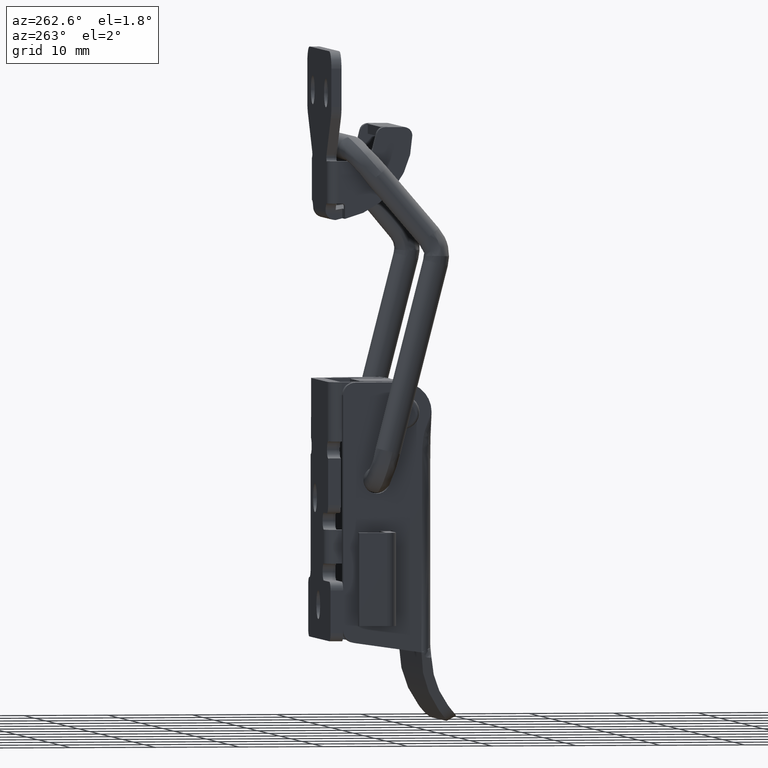
[diagram: clean part render]
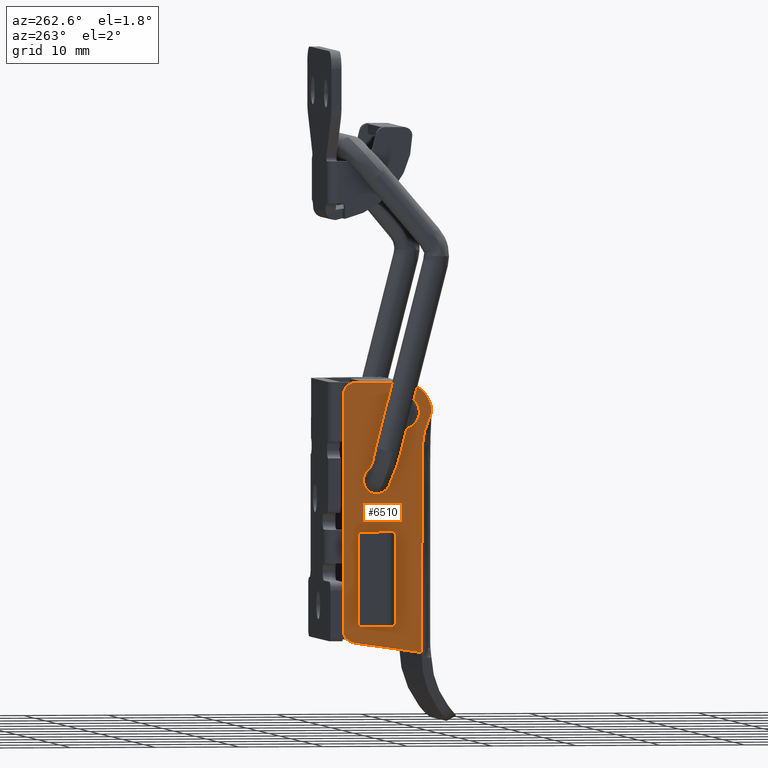
[diagram: same view with one face highlighted and labeled with its STEP entity id]
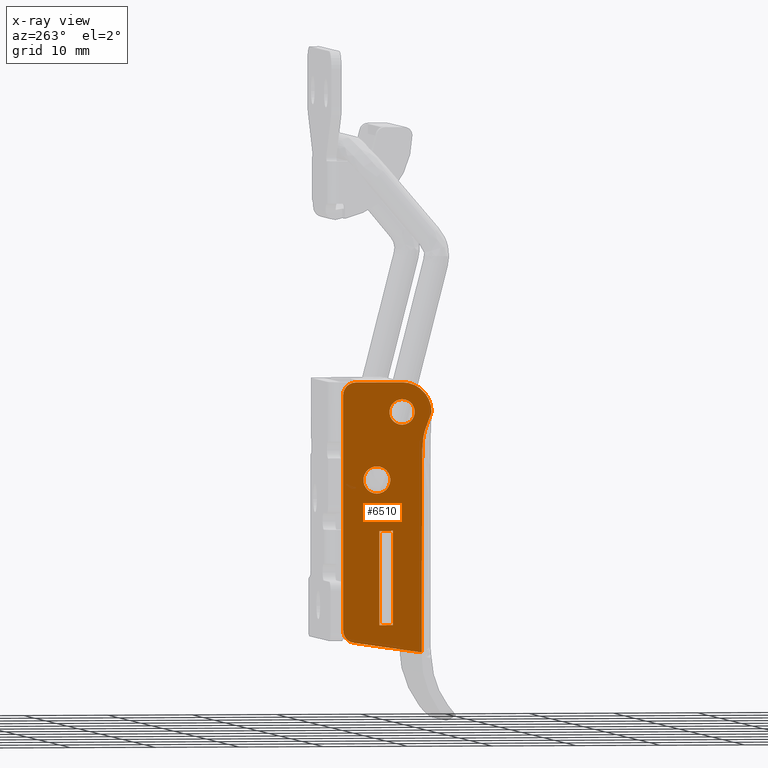
[diagram: x-ray of the same camera — body ghosted, the highlighted face saturated]
A machine part, auxiliary view. The second image highlights one B-rep face of the part: STEP entity #6510.
The next image is the same camera in x-ray: the body ghosted, the highlighted face saturated — about 0% of this face is hidden behind the body in this view.
In plain terms, the highlighted planar face has unit normal (-1, 0, 0).
Its self-contained STEP definition (entity closure, byte-faithful):
#49 = CARTESIAN_POINT ( 'NONE',  ( -8.100013999976139800, 10.20000000000020000, -59.32860040997160000 ) ) ;
#83 = B_SPLINE_CURVE_WITH_KNOTS ( 'NONE', 3,
 ( #49, #143, #142, #141, #140, #139, #138, #137, #136, #135 ),
 .UNSPECIFIED., .F., .F.,
 ( 4, 3, 3, 4 ),
 ( 0.6686716794155345100, 0.9259259259259260400, 0.9629629629629630200, 1.000000000000000000 ),
 .UNSPECIFIED. ) ;
#84 = CARTESIAN_POINT ( 'NONE',  ( -9.300013999997629500, 10.20000000000020000, -31.00002899999990200 ) ) ;
#135 = CARTESIAN_POINT ( 'NONE',  ( -9.300013999997629500, 10.20000000000020000, -31.00002899999990200 ) ) ;
#136 = CARTESIAN_POINT ( 'NONE',  ( -8.966680666664299100, 10.20000000000020000, -32.05558455555544800 ) ) ;
#137 = CARTESIAN_POINT ( 'NONE',  ( -8.400013999997629100, 10.20000000000020000, -33.11114011111099800 ) ) ;
#138 = CARTESIAN_POINT ( 'NONE',  ( -8.300013999997629500, 10.20000000000020000, -34.16669566666654800 ) ) ;
#139 = CARTESIAN_POINT ( 'NONE',  ( -8.200013999997628000, 10.20000000000020000, -35.22225122222209800 ) ) ;
#140 = CARTESIAN_POINT ( 'NONE',  ( -8.100013999997630200, 10.20000000000020000, -36.27780677777764900 ) ) ;
#141 = CARTESIAN_POINT ( 'NONE',  ( -8.100013999997630200, 10.20000000000020000, -37.33336233333319900 ) ) ;
#142 = CARTESIAN_POINT ( 'NONE',  ( -8.100013999997630200, 10.20000000000020000, -44.66510835887933000 ) ) ;
#143 = CARTESIAN_POINT ( 'NONE',  ( -8.100013999997630200, 10.20000000000020000, -51.99685438442546800 ) ) ;
#2033 = CIRCLE ( 'NONE', #2099, 1.500000000000001300 ) ;
#2034 = CARTESIAN_POINT ( 'NONE',  ( 1.199986000002370100, 10.20000000000020000, -56.69908499999989700 ) ) ;
#2035 = DIRECTION ( 'NONE',  ( 0.0000000000000000000, 0.0000000000000000000, 1.000000000000000000 ) ) ;
#2036 = VECTOR ( 'NONE', #2035, 1000.000000000000000 ) ;
#2037 = CARTESIAN_POINT ( 'NONE',  ( 1.199986000002370100, 10.20000000000020000, 0.0000000000000000000 ) ) ;
#2038 = LINE ( 'NONE', #2037, #2036 ) ;
#2039 = CARTESIAN_POINT ( 'NONE',  ( 1.199986000002370100, 10.20000000000020000, -29.00002899999989800 ) ) ;
#2040 = DIRECTION ( 'NONE',  ( 0.0000000000000000000, 0.0000000000000000000, 1.000000000000000000 ) ) ;
#2041 = DIRECTION ( 'NONE',  ( 0.0000000000000000000, -1.000000000000000000, 0.0000000000000000000 ) ) ;
#2042 = CARTESIAN_POINT ( 'NONE',  ( -0.3000139999976310100, 10.20000000000020000, -29.00002899999989800 ) ) ;
#2043 = AXIS2_PLACEMENT_3D ( 'NONE', #2042, #2041, #2040 ) ;
#2044 = CIRCLE ( 'NONE', #2043, 1.500000000000001300 ) ;
#2045 = CARTESIAN_POINT ( 'NONE',  ( -0.3000139999976310100, 10.20000000000020000, -27.50002899999990200 ) ) ;
#2046 = DIRECTION ( 'NONE',  ( -1.000000000000000000, 0.0000000000000000000, 0.0000000000000000000 ) ) ;
#2047 = VECTOR ( 'NONE', #2046, 1000.000000000000000 ) ;
#2048 = CARTESIAN_POINT ( 'NONE',  ( 0.0000000000000000000, 10.20000000000020000, -27.50002899999980200 ) ) ;
#2049 = LINE ( 'NONE', #2048, #2047 ) ;
#2077 = DIRECTION ( 'NONE',  ( 0.0000000000000000000, 0.0000000000000000000, 1.000000000000000000 ) ) ;
#2078 = DIRECTION ( 'NONE',  ( 0.0000000000000000000, -1.000000000000000000, 0.0000000000000000000 ) ) ;
#2079 = CARTESIAN_POINT ( 'NONE',  ( -5.800013999997619700, 10.20000000000020000, -31.00002899999990200 ) ) ;
#2080 = AXIS2_PLACEMENT_3D ( 'NONE', #2079, #2078, #2077 ) ;
#2081 = CIRCLE ( 'NONE', #2080, 1.500000000000001300 ) ;
#2082 = DIRECTION ( 'NONE',  ( 1.000000000000000000, 0.0000000000000000000, 0.0000000000000000000 ) ) ;
#2083 = DIRECTION ( 'NONE',  ( 0.0000000000000000000, 1.000000000000000000, 0.0000000000000000000 ) ) ;
#2084 = CARTESIAN_POINT ( 'NONE',  ( 0.0000000000000000000, 10.20000000000020000, 0.0000000000000000000 ) ) ;
#2085 = AXIS2_PLACEMENT_3D ( 'NONE', #2084, #2083, #2082 ) ;
#2086 = PLANE ( 'NONE',  #2085 ) ;
#2087 = FACE_BOUND ( 'NONE', #6574, .T. ) ;
#2088 = FACE_BOUND ( 'NONE', #6504, .T. ) ;
#2089 = FACE_OUTER_BOUND ( 'NONE', #6515, .T. ) ;
#2090 = FACE_BOUND ( 'NONE', #6511, .T. ) ;
#2096 = DIRECTION ( 'NONE',  ( -1.770863548392989100E-015, 0.0000000000000000000, 1.000000000000000000 ) ) ;
#2097 = DIRECTION ( 'NONE',  ( 0.0000000000000000000, -1.000000000000000000, 0.0000000000000000000 ) ) ;
#2098 = CARTESIAN_POINT ( 'NONE',  ( -0.3000139999976310100, 10.20000000000020000, -56.69908499999989700 ) ) ;
#2099 = AXIS2_PLACEMENT_3D ( 'NONE', #2098, #2097, #2096 ) ;
#2104 = DIRECTION ( 'NONE',  ( 0.0000000000000000000, 0.0000000000000000000, 1.000000000000000000 ) ) ;
#2105 = DIRECTION ( 'NONE',  ( 0.0000000000000000000, -1.000000000000000000, 0.0000000000000000000 ) ) ;
#2106 = CARTESIAN_POINT ( 'NONE',  ( -2.800013999999804600, 10.19999999999987800, -39.00003249999989700 ) ) ;
#2107 = AXIS2_PLACEMENT_3D ( 'NONE', #2106, #2105, #2104 ) ;
#2108 = CIRCLE ( 'NONE', #2107, 1.599999999999997200 ) ;
#2132 = CARTESIAN_POINT ( 'NONE',  ( -4.700013999997549900, 10.20000000000020000, -45.00002899999980600 ) ) ;
#2133 = DIRECTION ( 'NONE',  ( -1.000000000000000000, 0.0000000000000000000, 0.0000000000000000000 ) ) ;
#2134 = VECTOR ( 'NONE', #2133, 1000.000000000000000 ) ;
#2135 = CARTESIAN_POINT ( 'NONE',  ( 0.0000000000000000000, 10.20000000000020000, -45.00002899999980600 ) ) ;
#2136 = LINE ( 'NONE', #2135, #2134 ) ;
#2137 = CARTESIAN_POINT ( 'NONE',  ( -3.100013999997644800, 10.20000000000020000, -45.00002899999980600 ) ) ;
#2138 = CARTESIAN_POINT ( 'NONE',  ( -3.100013999997644800, 10.20000000000020000, -56.10002899999980000 ) ) ;
#2139 = DIRECTION ( 'NONE',  ( 0.0000000000000000000, 0.0000000000000000000, 1.000000000000000000 ) ) ;
#2140 = VECTOR ( 'NONE', #2139, 1000.000000000000000 ) ;
#2141 = CARTESIAN_POINT ( 'NONE',  ( -3.100013999997644800, 10.20000000000020000, 0.0000000000000000000 ) ) ;
#2142 = LINE ( 'NONE', #2141, #2140 ) ;
#2181 = CARTESIAN_POINT ( 'NONE',  ( -5.800013999997630300, 10.20000000000020000, -27.50002899999980200 ) ) ;
#2182 = DIRECTION ( 'NONE',  ( 0.0000000000000000000, 0.0000000000000000000, 1.000000000000000000 ) ) ;
#2183 = DIRECTION ( 'NONE',  ( 0.0000000000000000000, -1.000000000000000000, 0.0000000000000000000 ) ) ;
#2184 = CARTESIAN_POINT ( 'NONE',  ( -5.800013999997630300, 10.20000000000020000, -31.00002899999990200 ) ) ;
#2185 = AXIS2_PLACEMENT_3D ( 'NONE', #2184, #2183, #2182 ) ;
#2186 = CIRCLE ( 'NONE', #2185, 3.499999999999999600 ) ;
#2187 = DIRECTION ( 'NONE',  ( 1.000000000000000000, 0.0000000000000000000, 0.0000000000000000000 ) ) ;
#2188 = VECTOR ( 'NONE', #2187, 1000.000000000000000 ) ;
#2189 = CARTESIAN_POINT ( 'NONE',  ( 0.0000000000000000000, 10.20000000000020000, -56.10002899999980000 ) ) ;
#2190 = LINE ( 'NONE', #2189, #2188 ) ;
#2191 = CARTESIAN_POINT ( 'NONE',  ( -4.700013999997549900, 10.20000000000020000, -56.10002899999980000 ) ) ;
#2192 = DIRECTION ( 'NONE',  ( 0.0000000000000000000, 0.0000000000000000000, -1.000000000000000000 ) ) ;
#2193 = VECTOR ( 'NONE', #2192, 1000.000000000000000 ) ;
#2194 = CARTESIAN_POINT ( 'NONE',  ( -4.700013999997549900, 10.20000000000020000, 0.0000000000000000000 ) ) ;
#2195 = LINE ( 'NONE', #2194, #2193 ) ;
#6158 = VERTEX_POINT ( 'NONE', #11909 ) ;
#6159 = VERTEX_POINT ( 'NONE', #11908 ) ;
#6205 = VERTEX_POINT ( 'NONE', #12709 ) ;
#6207 = EDGE_CURVE ( 'NONE', #6208, #6205, #13739, .T. ) ;
#6208 = VERTEX_POINT ( 'NONE', #13734 ) ;
#6234 = EDGE_CURVE ( 'NONE', #6158, #6159, #13740, .T. ) ;
#6255 = VERTEX_POINT ( 'NONE', #13828 ) ;
#6257 = EDGE_CURVE ( 'NONE', #6255, #6258, #13827, .T. ) ;
#6258 = VERTEX_POINT ( 'NONE', #13823 ) ;
#6348 = EDGE_CURVE ( 'NONE', #6255, #6349, #83, .T. ) ;
#6349 = VERTEX_POINT ( 'NONE', #84 ) ;
#6494 = EDGE_CURVE ( 'NONE', #6495, #6579, #2049, .T. ) ;
#6495 = VERTEX_POINT ( 'NONE', #2045 ) ;
#6496 = ORIENTED_EDGE ( 'NONE', *, *, #6497, .F. ) ;
#6497 = EDGE_CURVE ( 'NONE', #6498, #6495, #2044, .T. ) ;
#6498 = VERTEX_POINT ( 'NONE', #2039 ) ;
#6499 = ORIENTED_EDGE ( 'NONE', *, *, #6500, .F. ) ;
#6500 = EDGE_CURVE ( 'NONE', #6501, #6498, #2038, .T. ) ;
#6501 = VERTEX_POINT ( 'NONE', #2034 ) ;
#6502 = ORIENTED_EDGE ( 'NONE', *, *, #6503, .F. ) ;
#6503 = EDGE_CURVE ( 'NONE', #6258, #6501, #2033, .T. ) ;
#6504 = EDGE_LOOP ( 'NONE', ( #6562, #6566, #6569, #6572 ) ) ;
#6510 = ADVANCED_FACE ( 'NONE', ( #2090, #2089, #2088, #2087 ), #2086, .T. ) ;
#6511 = EDGE_LOOP ( 'NONE', ( #6512, #6514 ) ) ;
#6512 = ORIENTED_EDGE ( 'NONE', *, *, #6513, .T. ) ;
#6513 = EDGE_CURVE ( 'NONE', #6159, #6158, #2081, .T. ) ;
#6514 = ORIENTED_EDGE ( 'NONE', *, *, #6234, .T. ) ;
#6515 = EDGE_LOOP ( 'NONE', ( #6516, #6576, #6577, #6580, #6496, #6499, #6502 ) ) ;
#6516 = ORIENTED_EDGE ( 'NONE', *, *, #6257, .F. ) ;
#6547 = ORIENTED_EDGE ( 'NONE', *, *, #6548, .T. ) ;
#6548 = EDGE_CURVE ( 'NONE', #6205, #6208, #2108, .T. ) ;
#6562 = ORIENTED_EDGE ( 'NONE', *, *, #6563, .T. ) ;
#6563 = EDGE_CURVE ( 'NONE', #6564, #6565, #2142, .T. ) ;
#6564 = VERTEX_POINT ( 'NONE', #2138 ) ;
#6565 = VERTEX_POINT ( 'NONE', #2137 ) ;
#6566 = ORIENTED_EDGE ( 'NONE', *, *, #6567, .T. ) ;
#6567 = EDGE_CURVE ( 'NONE', #6565, #6568, #2136, .T. ) ;
#6568 = VERTEX_POINT ( 'NONE', #2132 ) ;
#6569 = ORIENTED_EDGE ( 'NONE', *, *, #6570, .T. ) ;
#6570 = EDGE_CURVE ( 'NONE', #6568, #6571, #2195, .T. ) ;
#6571 = VERTEX_POINT ( 'NONE', #2191 ) ;
#6572 = ORIENTED_EDGE ( 'NONE', *, *, #6573, .T. ) ;
#6573 = EDGE_CURVE ( 'NONE', #6571, #6564, #2190, .T. ) ;
#6574 = EDGE_LOOP ( 'NONE', ( #6575, #6547 ) ) ;
#6575 = ORIENTED_EDGE ( 'NONE', *, *, #6207, .T. ) ;
#6576 = ORIENTED_EDGE ( 'NONE', *, *, #6348, .T. ) ;
#6577 = ORIENTED_EDGE ( 'NONE', *, *, #6578, .F. ) ;
#6578 = EDGE_CURVE ( 'NONE', #6579, #6349, #2186, .T. ) ;
#6579 = VERTEX_POINT ( 'NONE', #2181 ) ;
#6580 = ORIENTED_EDGE ( 'NONE', *, *, #6494, .F. ) ;
#11908 = CARTESIAN_POINT ( 'NONE',  ( -5.800013999997619700, 10.20000000000020000, -32.50002899999990500 ) ) ;
#11909 = CARTESIAN_POINT ( 'NONE',  ( -5.800013999997619700, 10.20000000000020000, -29.50002899999989800 ) ) ;
#12709 = CARTESIAN_POINT ( 'NONE',  ( -2.800013999999804600, 10.19999999999987800, -40.60003249999989800 ) ) ;
#13734 = CARTESIAN_POINT ( 'NONE',  ( -2.800013999999804600, 10.19999999999987800, -37.40003249999990200 ) ) ;
#13735 = DIRECTION ( 'NONE',  ( 0.0000000000000000000, 0.0000000000000000000, 1.000000000000000000 ) ) ;
#13736 = DIRECTION ( 'NONE',  ( 0.0000000000000000000, -1.000000000000000000, 0.0000000000000000000 ) ) ;
#13737 = CARTESIAN_POINT ( 'NONE',  ( -2.800013999999804600, 10.19999999999987800, -39.00003249999989700 ) ) ;
#13738 = AXIS2_PLACEMENT_3D ( 'NONE', #13737, #13736, #13735 ) ;
#13739 = CIRCLE ( 'NONE', #13738, 1.599999999999997200 ) ;
#13740 = CIRCLE ( 'NONE', #13801, 1.500000000000001300 ) ;
#13745 = CARTESIAN_POINT ( 'NONE',  ( -5.800013999997619700, 10.20000000000020000, -31.00002899999990200 ) ) ;
#13799 = DIRECTION ( 'NONE',  ( 0.0000000000000000000, 0.0000000000000000000, 1.000000000000000000 ) ) ;
#13800 = DIRECTION ( 'NONE',  ( 0.0000000000000000000, -1.000000000000000000, 0.0000000000000000000 ) ) ;
#13801 = AXIS2_PLACEMENT_3D ( 'NONE', #13745, #13800, #13799 ) ;
#13823 = CARTESIAN_POINT ( 'NONE',  ( -0.08788199999763440800, 10.20000000000020000, -58.18401000000000100 ) ) ;
#13824 = DIRECTION ( 'NONE',  ( 0.9899494915119364500, 0.0000000000000000000, 0.1414213712819191200 ) ) ;
#13825 = VECTOR ( 'NONE', #13824, 1000.000000000000100 ) ;
#13826 = CARTESIAN_POINT ( 'NONE',  ( 8.144004608499148600, 10.20000000000020000, -57.00802607113000400 ) ) ;
#13827 = LINE ( 'NONE', #13826, #13825 ) ;
#13828 = CARTESIAN_POINT ( 'NONE',  ( -8.100013999976139800, 10.20000000000020000, -59.32860040997160000 ) ) ;